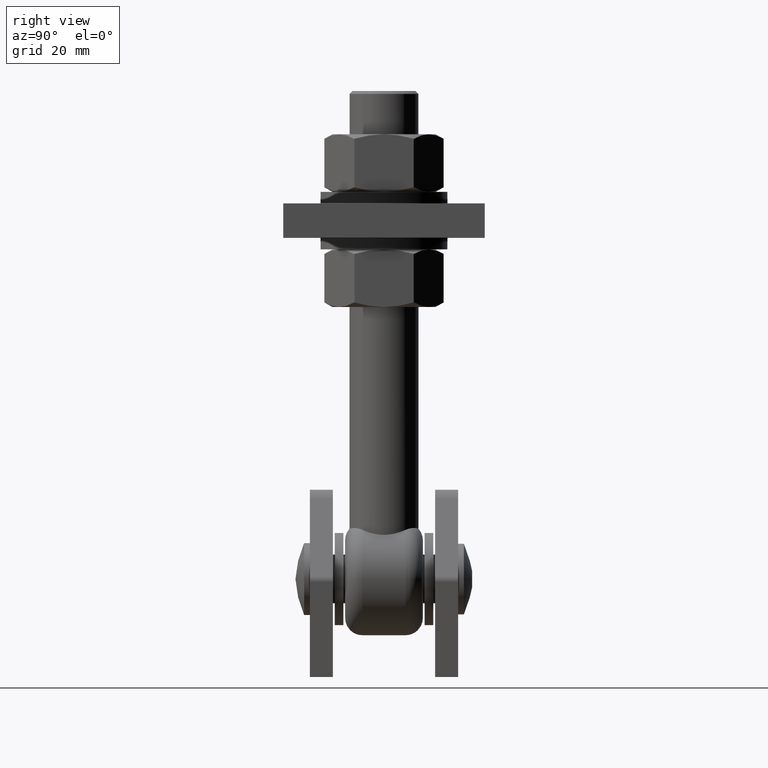
[diagram: clean part render]
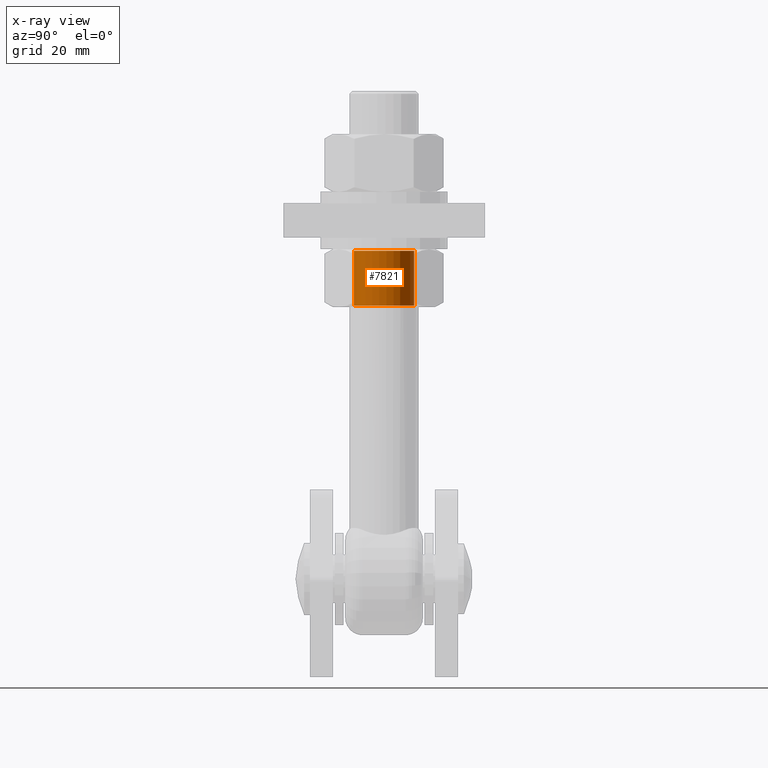
[diagram: x-ray — body ghosted, one internal face saturated and labeled with its STEP entity id]
A machine part, right view, then the same camera in x-ray: the body is ghosted and one INTERNAL B-rep face — a face not visible from any outside direction — is saturated and labeled: STEP entity #7821.
In plain terms, the highlighted cylindrical surface (bore or boss wall) has radius 10.5 mm, axis along (0, 0, -1).
Its self-contained STEP definition (entity closure, byte-faithful):
#758 = CIRCLE ( 'NONE', #1039, 10.49999999999999822 ) ;
#884 = DIRECTION ( 'NONE',  ( 0.000000000000000000, 0.000000000000000000, 1.000000000000000000 ) ) ;
#957 = ORIENTED_EDGE ( 'NONE', *, *, #12740, .T. ) ;
#1039 = AXIS2_PLACEMENT_3D ( 'NONE', #9382, #1367, #14047 ) ;
#1367 = DIRECTION ( 'NONE',  ( 0.000000000000000000, 1.000000000000000000, 0.000000000000000000 ) ) ;
#3424 = CYLINDRICAL_SURFACE ( 'NONE', #14214, 10.49999999999999822 ) ;
#4680 = CARTESIAN_POINT ( 'NONE',  ( 0.000000000000000000, 9.499999999999987566, 10.49999999999999822 ) ) ;
#4830 = FACE_OUTER_BOUND ( 'NONE', #10402, .T. ) ;
#5457 = CARTESIAN_POINT ( 'NONE',  ( 0.000000000000000000, -9.499999999999996447, 0.000000000000000000 ) ) ;
#5609 = CARTESIAN_POINT ( 'NONE',  ( 0.000000000000000000, 10.00000000000000000, 0.000000000000000000 ) ) ;
#7821 = ADVANCED_FACE ( 'NONE', ( #4830, #8466 ), #3424, .F. ) ;
#8138 = CARTESIAN_POINT ( 'NONE',  ( 0.000000000000000000, -9.499999999999996447, 10.49999999999999822 ) ) ;
#8288 = ORIENTED_EDGE ( 'NONE', *, *, #14248, .T. ) ;
#8466 = FACE_OUTER_BOUND ( 'NONE', #9440, .T. ) ;
#8899 = DIRECTION ( 'NONE',  ( -0.000000000000000000, -1.000000000000000000, -0.000000000000000000 ) ) ;
#9382 = CARTESIAN_POINT ( 'NONE',  ( 0.000000000000000000, 9.499999999999987566, 0.000000000000000000 ) ) ;
#9440 = EDGE_LOOP ( 'NONE', ( #8288 ) ) ;
#10402 = EDGE_LOOP ( 'NONE', ( #957 ) ) ;
#11387 = DIRECTION ( 'NONE',  ( -0.000000000000000000, 1.000000000000000000, -0.000000000000000000 ) ) ;
#11614 = VERTEX_POINT ( 'NONE', #8138 ) ;
#12339 = VERTEX_POINT ( 'NONE', #4680 ) ;
#12740 = EDGE_CURVE ( 'NONE', #12339, #12339, #758, .T. ) ;
#13567 = DIRECTION ( 'NONE',  ( 0.000000000000000000, 0.000000000000000000, 1.000000000000000000 ) ) ;
#14047 = DIRECTION ( 'NONE',  ( 0.000000000000000000, 0.000000000000000000, 1.000000000000000000 ) ) ;
#14214 = AXIS2_PLACEMENT_3D ( 'NONE', #5609, #11387, #884 ) ;
#14248 = EDGE_CURVE ( 'NONE', #11614, #11614, #14549, .T. ) ;
#14549 = CIRCLE ( 'NONE', #14645, 10.49999999999999822 ) ;
#14645 = AXIS2_PLACEMENT_3D ( 'NONE', #5457, #8899, #13567 ) ;